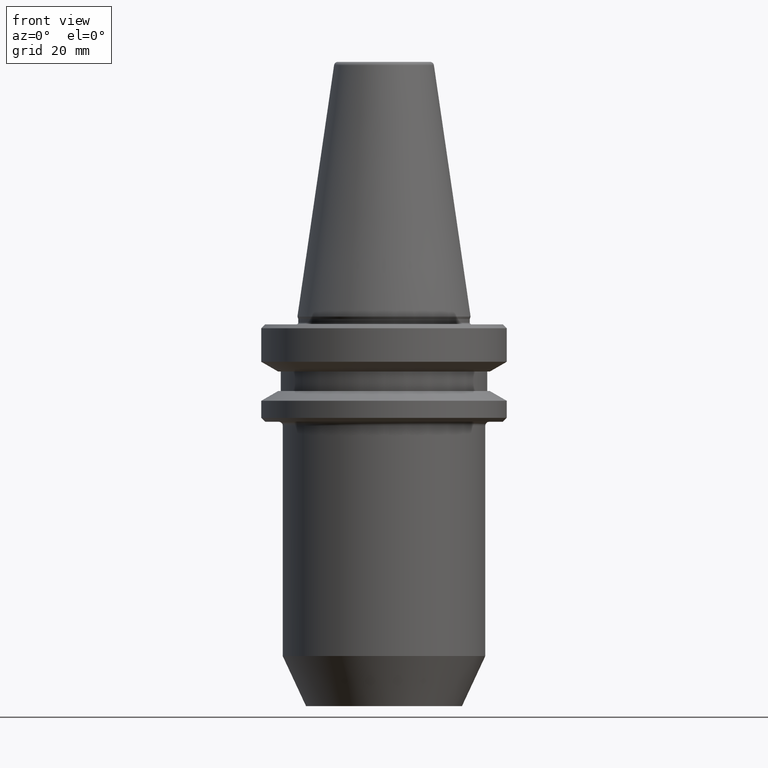
[diagram: clean part render]
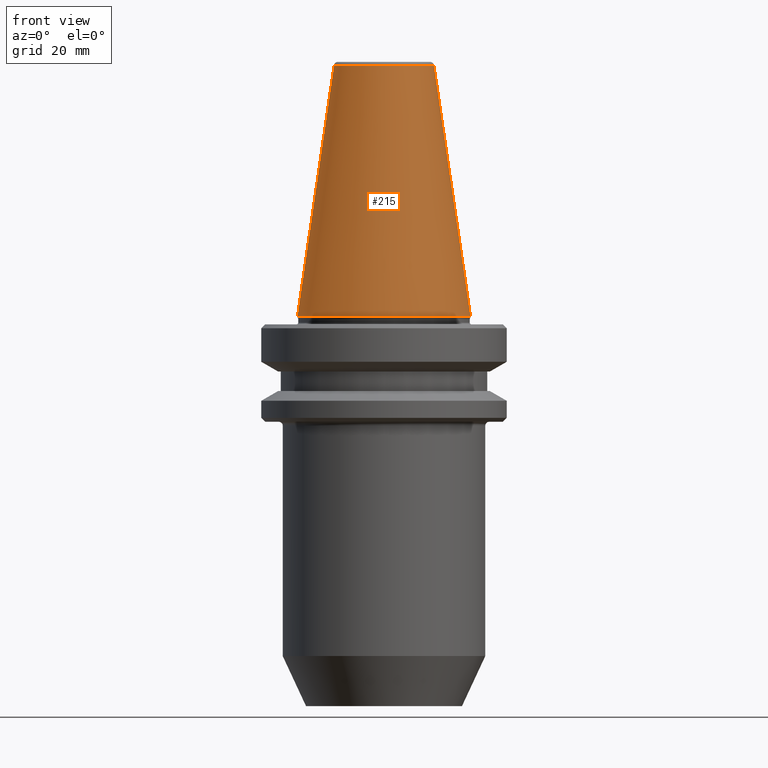
[diagram: same view with one face highlighted and labeled with its STEP entity id]
A machine part, front view. The second image highlights one B-rep face of the part: STEP entity #215.
In plain terms, the highlighted conical surface has half-angle 8.297 deg.
Its self-contained STEP definition (entity closure, byte-faithful):
#2 = CARTESIAN_POINT ( 'NONE',  ( 22.22499999999971700, 2.721777511104957700E-015, 0.6887132116596417200 ) ) ;
#7 = AXIS2_PLACEMENT_3D ( 'NONE', #564, #289, #995 ) ;
#18 = VERTEX_POINT ( 'NONE', #568 ) ;
#21 = VERTEX_POINT ( 'NONE', #684 ) ;
#64 = LINE ( 'NONE', #2, #65 ) ;
#65 = VECTOR ( 'NONE', #746, 999.9999999999998900 ) ;
#86 = ORIENTED_EDGE ( 'NONE', *, *, #451, .F. ) ;
#100 = AXIS2_PLACEMENT_3D ( 'NONE', #172, #966, #502 ) ;
#109 = EDGE_CURVE ( 'NONE', #889, #18, #659, .T. ) ;
#169 = EDGE_CURVE ( 'NONE', #21, #889, #298, .T. ) ;
#172 = CARTESIAN_POINT ( 'NONE',  ( 0.0000000000000000000, 0.0000000000000000000, 0.6887132116596417200 ) ) ;
#175 = EDGE_LOOP ( 'NONE', ( #946, #86, #762, #257 ) ) ;
#198 = VERTEX_POINT ( 'NONE', #647 ) ;
#215 = ADVANCED_FACE ( 'NONE', ( #783 ), #627, .T. ) ;
#257 = ORIENTED_EDGE ( 'NONE', *, *, #109, .T. ) ;
#289 = DIRECTION ( 'NONE',  ( -0.0000000000000000000, -0.0000000000000000000, 1.000000000000000000 ) ) ;
#298 = LINE ( 'NONE', #363, #385 ) ;
#363 = CARTESIAN_POINT ( 'NONE',  ( -22.22499999999971700, 0.0000000000000000000, 0.6887132116596417200 ) ) ;
#385 = VECTOR ( 'NONE', #745, 999.9999999999998900 ) ;
#444 = AXIS2_PLACEMENT_3D ( 'NONE', #692, #474, #599 ) ;
#451 = EDGE_CURVE ( 'NONE', #21, #198, #979, .T. ) ;
#474 = DIRECTION ( 'NONE',  ( -0.0000000000000000000, -0.0000000000000000000, 1.000000000000000000 ) ) ;
#502 = DIRECTION ( 'NONE',  ( -1.000000000000000000, 0.0000000000000000000, 0.0000000000000000000 ) ) ;
#510 = CARTESIAN_POINT ( 'NONE',  ( -22.22499999999971700, 2.721777511104957700E-015, 0.6887132116596417200 ) ) ;
#564 = CARTESIAN_POINT ( 'NONE',  ( 0.0000000000000000000, 0.0000000000000000000, 0.6887132116596417200 ) ) ;
#568 = CARTESIAN_POINT ( 'NONE',  ( 22.22499999999971700, 0.0000000000000000000, 0.6887132116596417200 ) ) ;
#599 = DIRECTION ( 'NONE',  ( 1.000000000000000000, 0.0000000000000000000, 0.0000000000000000000 ) ) ;
#627 = CONICAL_SURFACE ( 'NONE', #100, 22.22499999999971700, 0.1448138077623186700 ) ;
#647 = CARTESIAN_POINT ( 'NONE',  ( 12.81220206925713600, 0.0000000000000000000, 65.23302140054848100 ) ) ;
#659 = CIRCLE ( 'NONE', #7, 22.22499999999971700 ) ;
#684 = CARTESIAN_POINT ( 'NONE',  ( -12.81220206925713600, 1.569042225414484800E-015, 65.23302140054848100 ) ) ;
#692 = CARTESIAN_POINT ( 'NONE',  ( 0.0000000000000000000, 0.0000000000000000000, 65.23302140054848100 ) ) ;
#726 = EDGE_CURVE ( 'NONE', #198, #18, #64, .T. ) ;
#745 = DIRECTION ( 'NONE',  ( -0.1443081888881784800, 0.0000000000000000000, -0.9895327920891828800 ) ) ;
#746 = DIRECTION ( 'NONE',  ( 0.1443081888881784800, 1.767265616126594100E-017, -0.9895327920891828800 ) ) ;
#762 = ORIENTED_EDGE ( 'NONE', *, *, #169, .T. ) ;
#783 = FACE_OUTER_BOUND ( 'NONE', #175, .T. ) ;
#889 = VERTEX_POINT ( 'NONE', #510 ) ;
#946 = ORIENTED_EDGE ( 'NONE', *, *, #726, .F. ) ;
#966 = DIRECTION ( 'NONE',  ( 0.0000000000000000000, 0.0000000000000000000, -1.000000000000000000 ) ) ;
#979 = CIRCLE ( 'NONE', #444, 12.81220206925715000 ) ;
#995 = DIRECTION ( 'NONE',  ( 1.000000000000000000, 0.0000000000000000000, 0.0000000000000000000 ) ) ;